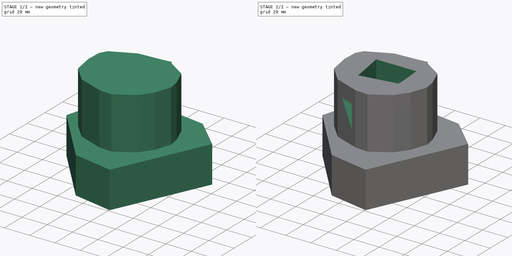
[diagram: build sequence overview — one tinted view per stage of 2, left to right]
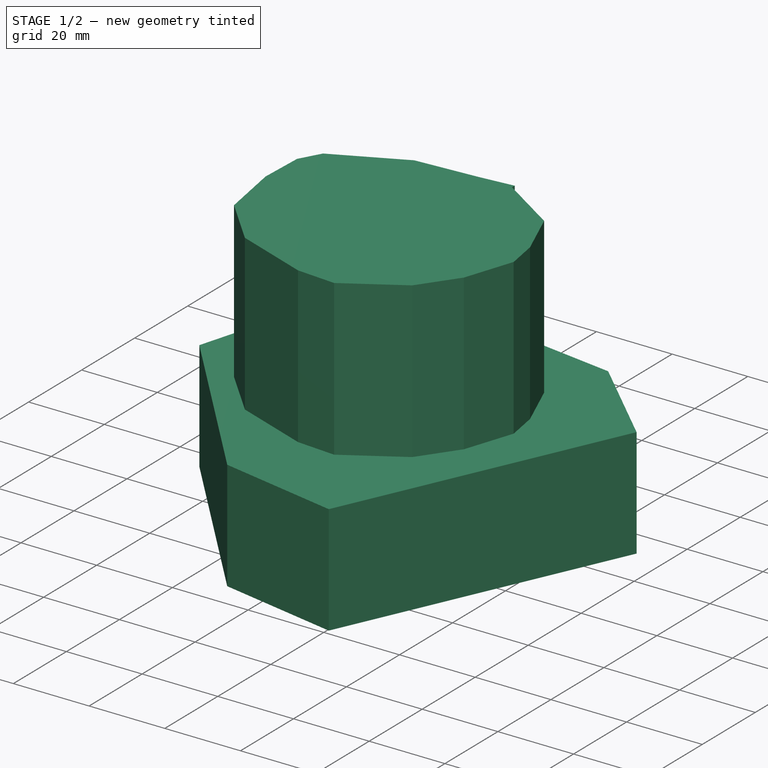
[diagram: stage 1 of 2 — iso view after this stage's code; geometry added in this stage tinted green]
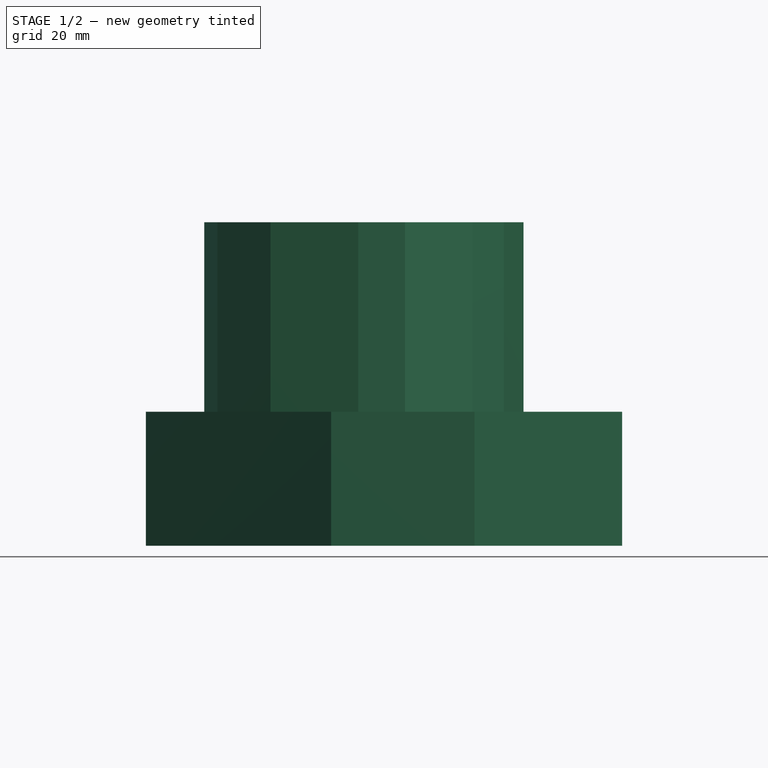
[diagram: stage 1 of 2 — front view after this stage's code; geometry added in this stage tinted green]
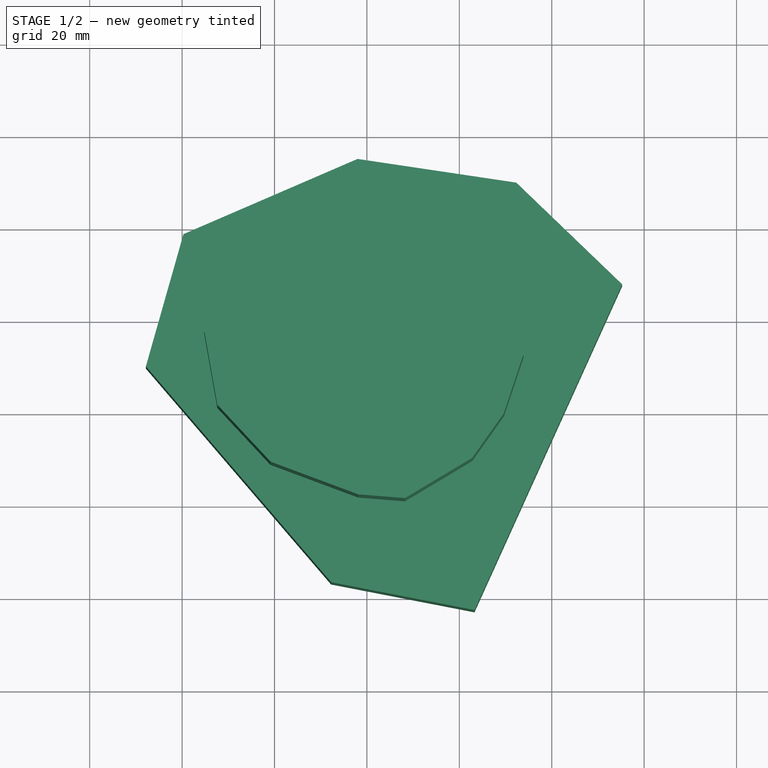
[diagram: stage 1 of 2 — top view after this stage's code; geometry added in this stage tinted green]
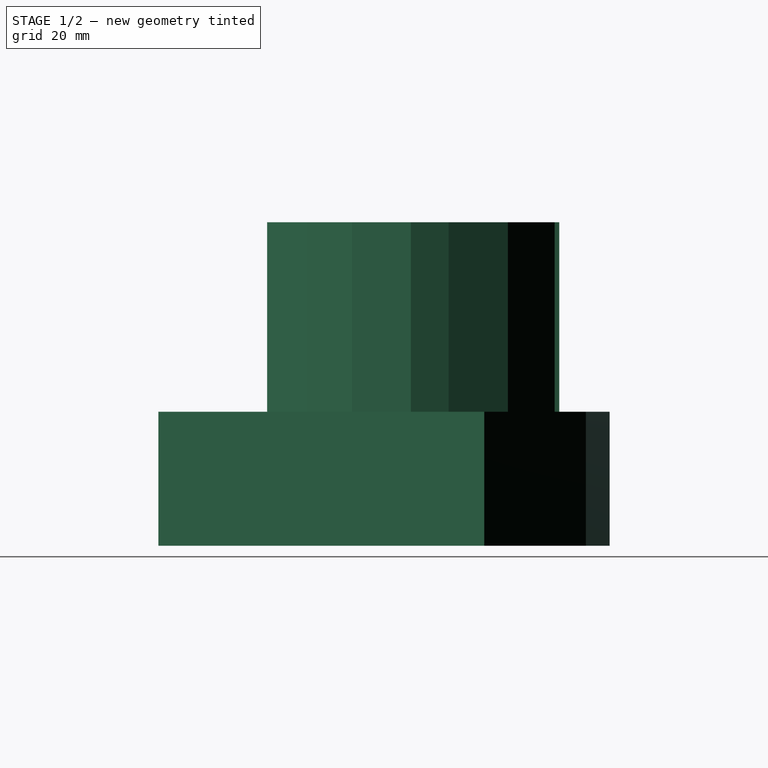
[diagram: stage 1 of 2 — right view after this stage's code; geometry added in this stage tinted green]
FCSTD DOCUMENT  (FreeCAD 0.21R33694 (Git))
Label: OJT1_T17P01.figura_apunyalada
License: All rights reserved
LicenseURL: http://en.wikipedia.org/wiki/All_rights_reserved
objects: Sketcher::SketchObject×7, PartDesign::Pad×2, PartDesign::Pocket×2, PartDesign::Body×1
note: 16 computed .brp shape members not serialized (recipe doc carries the construction recipe); baked Part::Feature solids carry a one-line shape summary decoded from their .brp

FEATURE [Sketcher::SketchObject] Sketch
  FullyConstrained = false
  MapMode = 5
  Support = -> [XY_Plane]
  sketch-geometry (7):
    g0: LineSegment StartX=-7.75437 StartY=-56.7845 StartZ=0 EndX=-47.8377 EndY=-10.0708 EndZ=0
    g1: LineSegment StartX=-47.8377 StartY=-10.0708 StartZ=0 EndX=-39.7005 EndY=18.5602 EndZ=0
    g2: LineSegment StartX=-39.7005 StartY=18.5602 StartZ=0 EndX=-2.02817 EndY=34.8346 EndZ=0
    g3: LineSegment StartX=-2.02817 StartY=34.8346 StartZ=0 EndX=32.329 EndY=29.7112 EndZ=0
    g4: LineSegment StartX=32.329 StartY=29.7112 StartZ=0 EndX=55.2338 EndY=7.71053 EndZ=0
    g5: LineSegment StartX=55.2338 StartY=7.71053 StartZ=0 EndX=23.2876 EndY=-62.8121 EndZ=0
    g6: LineSegment StartX=23.2876 StartY=-62.8121 StartZ=0 EndX=-7.75437 EndY=-56.7845 EndZ=0
  constraints (7):
    c: Coincident(g0,g1)
    c: Coincident(g1,g2)
    c: Coincident(g2,g3)
    c: Coincident(g3,g4)
    c: Coincident(g4,g5)
    c: Coincident(g5,g6)
    c: Coincident(g6,g0)
FEATURE [PartDesign::Pad] Pad
  Direction = (0,0,1)
  Length = 29
  Length2 = 10
  Profile = -> Sketch
  ReferenceAxis = -> Sketch [N_Axis]
  Refine = true
  Type = 0
FEATURE [Sketcher::SketchObject] Sketch001
  FullyConstrained = false
  MapMode = 5
  Placement = pos=(0,0,29) rot=(0,0,1;0rad)
  Support = -> [Pad]
  sketch-geometry (16):
    g0: LineSegment StartX=11.6699 StartY=22.9335 StartZ=0 EndX=27.2254 EndY=12.8324 EndZ=0
    g1: LineSegment StartX=27.2254 StartY=12.8324 StartZ=0 EndX=32.478 EndY=0 EndZ=0
    g2: LineSegment StartX=32.478 StartY=0 StartZ=0 EndX=33.8921 EndY=-8.17765 EndZ=0
    g3: LineSegment StartX=33.8921 StartY=-8.17765 StartZ=0 EndX=29.6497 EndY=-20.9049 EndZ=0
    g4: LineSegment StartX=29.6497 StartY=-20.9049 StartZ=0 EndX=22.781 EndY=-30.6019 EndZ=0
    g5: LineSegment StartX=22.781 StartY=-30.6019 StartZ=0 EndX=8.23555 EndY=-39.2888 EndZ=0
    g6: LineSegment StartX=8.23555 StartY=-39.2888 StartZ=0 EndX=-1.86546 EndY=-38.4807 EndZ=0
    g7: LineSegment StartX=-1.86546 StartY=-38.4807 StartZ=0 EndX=-20.8554 EndY=-31.41 EndZ=0
    g8: LineSegment StartX=-20.8554 StartY=-31.41 StartZ=0 EndX=-32.3705 EndY=-19.0867 EndZ=0
    g9: LineSegment StartX=-32.3705 StartY=-19.0867 StartZ=0 EndX=-35.1988 EndY=-3.12715 EndZ=0
    g10: LineSegment StartX=-35.1988 StartY=-3.12715 StartZ=0 EndX=-34.7948 EndY=8.18599 EndZ=0
    g11: LineSegment StartX=-34.7948 StartY=8.18599 StartZ=0 EndX=-31.7645 EndY=13.6405 EndZ=0
    g12: LineSegment StartX=-31.7645 StartY=13.6405 StartZ=0 EndX=-13.5826 EndY=22.1254 EndZ=0
    g13: LineSegment StartX=-13.5826 StartY=22.1254 StartZ=0 EndX=2.781 EndY=23.1355 EndZ=0
    g14: LineSegment StartX=2.781 StartY=23.1355 StartZ=0 EndX=11.6699 EndY=23.9436 EndZ=0
    g15: LineSegment StartX=11.6699 StartY=23.9436 StartZ=0 EndX=11.6699 EndY=22.9335 EndZ=0
  constraints (18):
    c: Coincident(g0,g1)
    c: PointOnObject(g1,g-1)
    c: Coincident(g1,g2)
    c: Coincident(g2,g3)
    c: Coincident(g3,g4)
    c: Coincident(g4,g5)
    c: Coincident(g5,g6)
    c: Coincident(g6,g7)
    c: Coincident(g7,g8)
    c: Coincident(g8,g9)
    c: Coincident(g9,g10)
    c: Coincident(g10,g11)
    c: Coincident(g11,g12)
    c: Coincident(g12,g13)
    c: Coincident(g13,g14)
    c: Coincident(g14,g15)
    c: Coincident(g15,g0)
    c: Vertical(g15)
FEATURE [PartDesign::Pad] Pad001
  BaseFeature = -> Pad
  Direction = (0,0,1)
  Length = 41
  Length2 = 10
  Profile = -> Sketch001
  ReferenceAxis = -> Sketch001 [N_Axis]
  Refine = true
  Type = 0
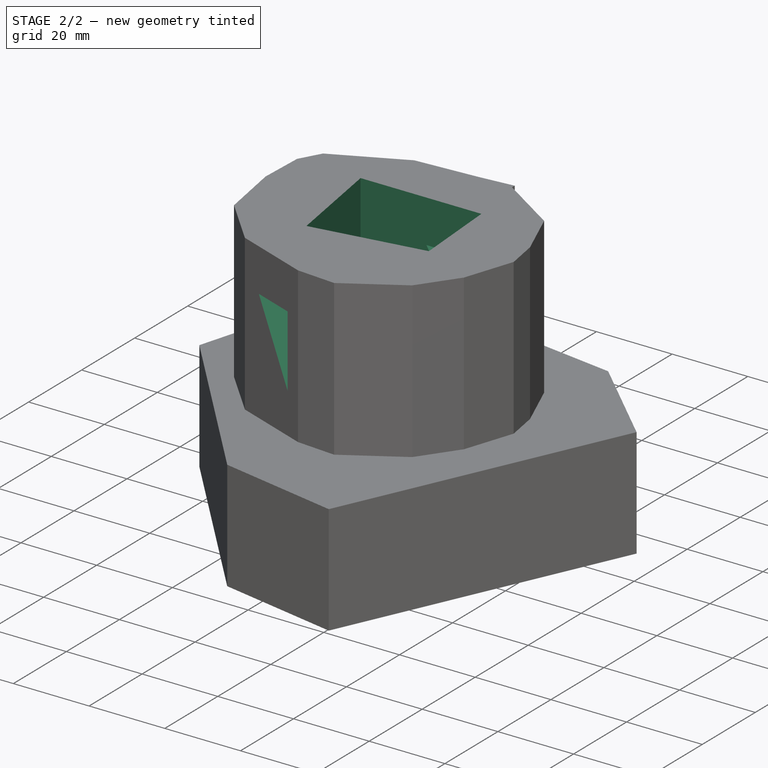
[diagram: stage 2 of 2 — iso view after this stage's code; geometry added in this stage tinted green]
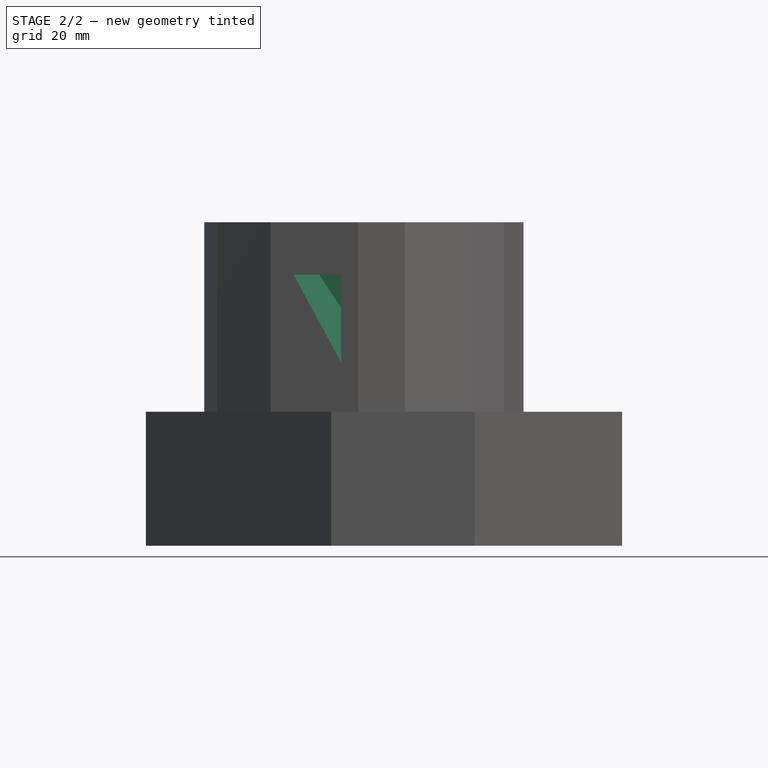
[diagram: stage 2 of 2 — front view after this stage's code; geometry added in this stage tinted green]
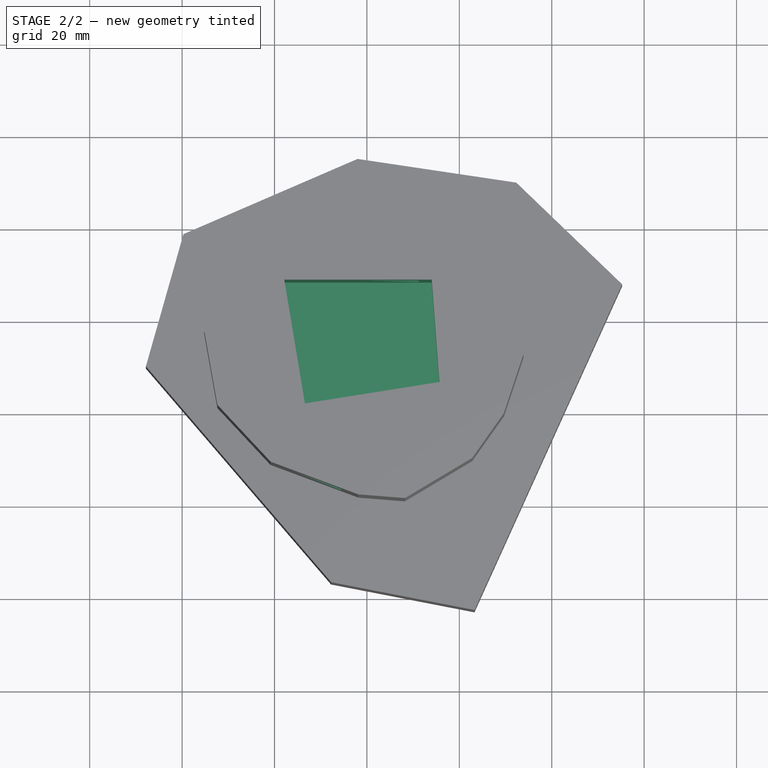
[diagram: stage 2 of 2 — top view after this stage's code; geometry added in this stage tinted green]
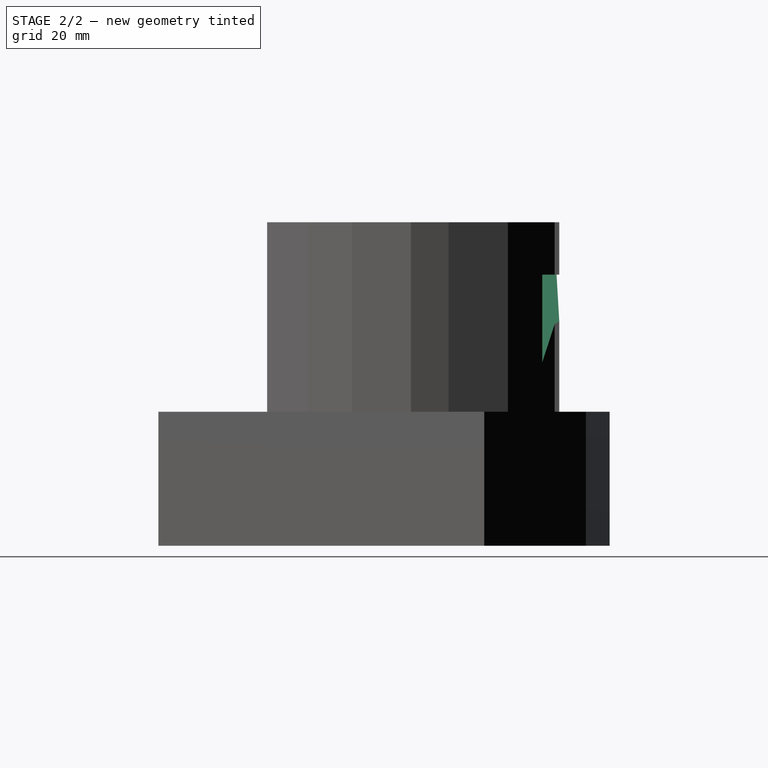
[diagram: stage 2 of 2 — right view after this stage's code; geometry added in this stage tinted green]
FEATURE [Sketcher::SketchObject] Sketch002
  FullyConstrained = true
  MapMode = 5
  Placement = pos=(0,0,70) rot=(0,0,1;0rad)
  Support = -> [Pad001]
FEATURE [Sketcher::SketchObject] Sketch003
  FullyConstrained = false
  MapMode = 5
  Placement = pos=(0,0,70) rot=(0,0,1;0rad)
  Support = -> [Pad001]
  sketch-geometry (5):
    g0: LineSegment StartX=-7.30587 StartY=7.9959 StartZ=0 EndX=14.0307 EndY=7.9959 EndZ=0
    g1: LineSegment StartX=14.0307 StartY=7.9959 StartZ=0 EndX=15.6848 EndY=-14.1677 EndZ=0
    g2: LineSegment StartX=15.6848 StartY=-14.1677 StartZ=0 EndX=-13.4257 EndY=-18.7989 EndZ=0
    g3: LineSegment StartX=-13.4257 StartY=-18.7989 StartZ=0 EndX=-17.8915 EndY=7.9959 EndZ=0
    g4: LineSegment StartX=-17.8915 StartY=7.9959 StartZ=0 EndX=-7.30587 EndY=7.9959 EndZ=0
  constraints (7):
    c: Horizontal(g0)
    c: Coincident(g0,g1)
    c: Coincident(g1,g2)
    c: Coincident(g2,g3)
    c: Coincident(g3,g4)
    c: Coincident(g4,g0)
    c: Horizontal(g4)
FEATURE [Sketcher::SketchObject] Sketch004
  FullyConstrained = true
  MapMode = 5
  Placement = pos=(0,0,70) rot=(0,0,1;0rad)
  Support = -> [Pad001]
FEATURE [PartDesign::Pocket] Pocket
  BaseFeature = -> Pad001
  Direction = (0,0,-1)
  Length = 37
  Length2 = 5
  Profile = -> Sketch003
  ReferenceAxis = -> Sketch003 [N_Axis]
  Refine = true
  Type = 0
FEATURE [Sketcher::SketchObject] Sketch005
  FullyConstrained = false
  MapMode = 5
  Placement = pos=(-12.8105,-34.4054,0) rot=(0.969052,-0.174555,-0.174555;1.60223rad)
  Support = -> [Pocket]
  sketch-geometry (4):
    g0: LineSegment StartX=-3.85992 StartY=62.6292 StartZ=0 EndX=5.39899 EndY=56.3658 EndZ=0
    g1: LineSegment StartX=5.39899 StartY=56.3658 StartZ=0 EndX=3.76506 EndY=42.659 EndZ=0
    g2: LineSegment StartX=3.76506 StartY=42.659 StartZ=0 EndX=-6.58313 EndY=45.0191 EndZ=0
    g3: LineSegment StartX=-3.79008 StartY=62.4371 StartZ=0 EndX=-6.3108 EndY=44.9284 EndZ=0
  constraints (3):
    c: Coincident(g0,g1)
    c: Coincident(g1,g2)
    c: Coincident(g3,g3)
FEATURE [Sketcher::SketchObject] Sketch006
  FullyConstrained = false
  MapMode = 5
  Placement = pos=(-12.8105,-34.4054,0) rot=(0.969052,-0.174555,-0.174555;1.60223rad)
  Support = -> [Pocket]
  sketch-geometry (3):
    g0: LineSegment StartX=-3.27367 StartY=58.6668 StartZ=0 EndX=7.70258 EndY=58.6668 EndZ=0
    g1: LineSegment StartX=7.70258 StartY=58.6668 StartZ=0 EndX=7.70258 EndY=39.7078 EndZ=0
    g2: LineSegment StartX=7.70258 StartY=39.7078 StartZ=0 EndX=-3.27367 EndY=58.6668 EndZ=0
  constraints (5):
    c: Horizontal(g0)
    c: Coincident(g0,g1)
    c: Vertical(g1)
    c: Coincident(g1,g2)
    c: Coincident(g2,g0)
FEATURE [PartDesign::Pocket] Pocket001
  BaseFeature = -> Pocket
  Direction = (0.348937,0.937146,0)
  Length = 80
  Length2 = 5
  Profile = -> Sketch006
  ReferenceAxis = -> Sketch006 [N_Axis]
  Refine = true
  Type = 0
FEATURE [PartDesign::Body] Body
  Group = -> [Sketch,Pad,Sketch001,Pad001,Sketch002,Sketch003,Sketch004,Pocket,Sketch005,Sketch006,Pocket001]
  Origin = -> Origin
  Tip = -> Pocket001
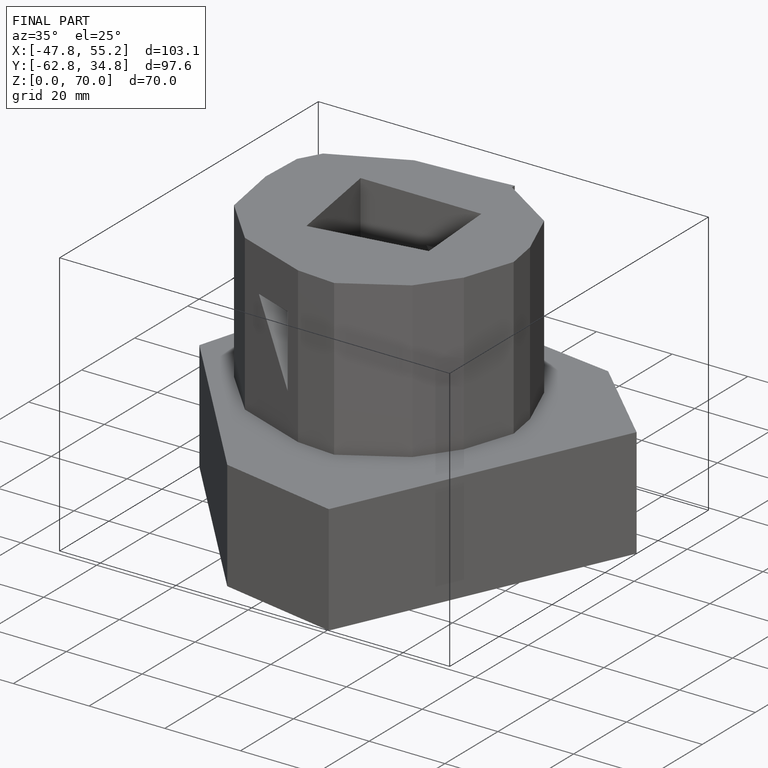
[diagram: finished part — iso view with bounding-box wireframe]
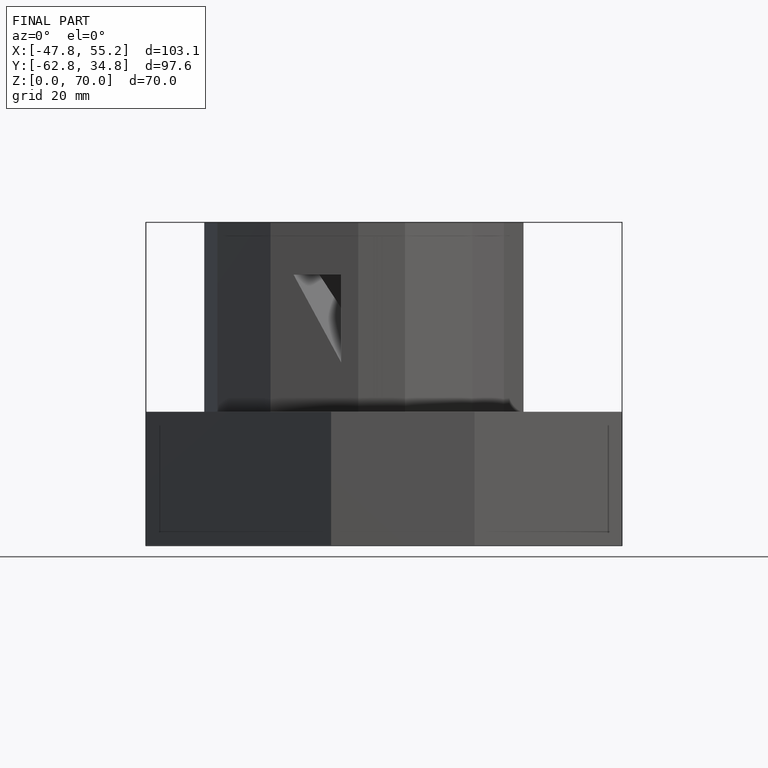
[diagram: finished part — front view with bounding-box wireframe]
